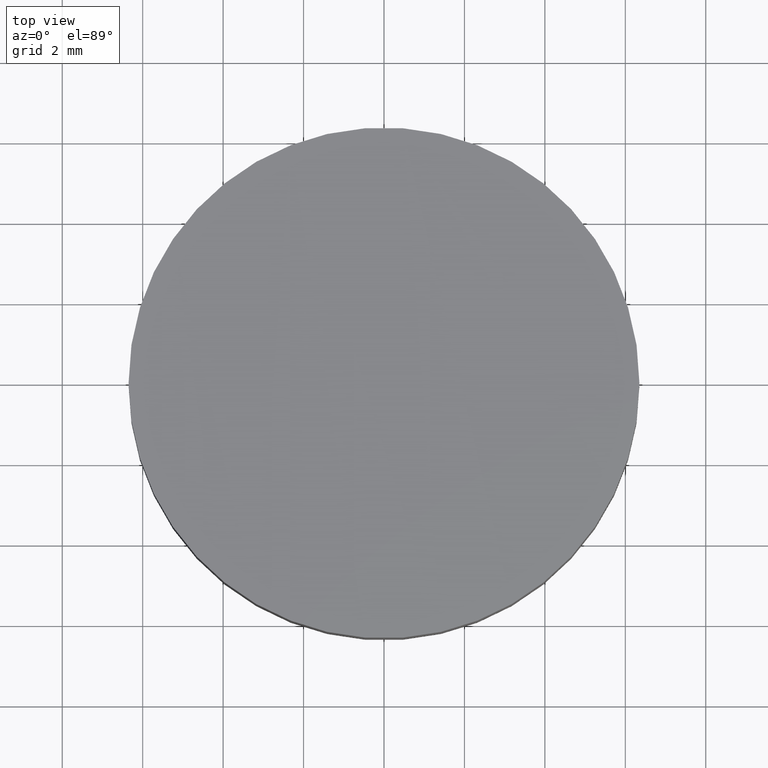
[diagram: clean part render]
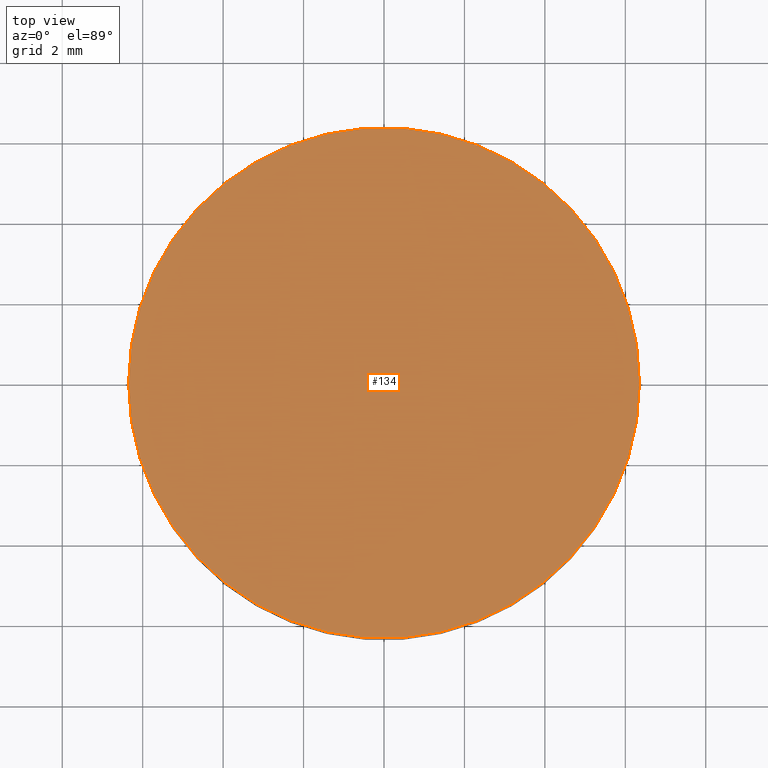
[diagram: same view with one face highlighted and labeled with its STEP entity id]
A machine part, top view. The second image highlights one B-rep face of the part: STEP entity #134.
In plain terms, the highlighted planar face has unit normal (0, 0, 1).
Its self-contained STEP definition (entity closure, byte-faithful):
#3 = EDGE_CURVE ( 'NONE', #124, #110, #46, .T. ) ;
#4 = FACE_OUTER_BOUND ( 'NONE', #93, .T. ) ;
#8 = CARTESIAN_POINT ( 'NONE',  ( 6.349999999999999600, 7.776507174585692200E-016, 3.000000000000000000 ) ) ;
#11 = DIRECTION ( 'NONE',  ( 0.0000000000000000000, 0.0000000000000000000, 1.000000000000000000 ) ) ;
#22 = DIRECTION ( 'NONE',  ( 1.000000000000000000, 0.0000000000000000000, 0.0000000000000000000 ) ) ;
#23 = EDGE_CURVE ( 'NONE', #110, #124, #82, .T. ) ;
#28 = DIRECTION ( 'NONE',  ( 1.000000000000000000, 0.0000000000000000000, -0.0000000000000000000 ) ) ;
#30 = CARTESIAN_POINT ( 'NONE',  ( -6.349999999999999600, 0.0000000000000000000, 3.000000000000000000 ) ) ;
#41 = CARTESIAN_POINT ( 'NONE',  ( 0.0000000000000000000, 0.0000000000000000000, 3.000000000000000000 ) ) ;
#46 = CIRCLE ( 'NONE', #69, 6.349999999999999600 ) ;
#65 = CARTESIAN_POINT ( 'NONE',  ( 0.0000000000000000000, 0.0000000000000000000, 3.000000000000000000 ) ) ;
#68 = DIRECTION ( 'NONE',  ( 1.000000000000000000, 0.0000000000000000000, 0.0000000000000000000 ) ) ;
#69 = AXIS2_PLACEMENT_3D ( 'NONE', #41, #11, #22 ) ;
#78 = CARTESIAN_POINT ( 'NONE',  ( 0.0000000000000000000, 0.0000000000000000000, 3.000000000000000000 ) ) ;
#82 = CIRCLE ( 'NONE', #91, 6.349999999999999600 ) ;
#88 = PLANE ( 'NONE',  #139 ) ;
#91 = AXIS2_PLACEMENT_3D ( 'NONE', #78, #140, #68 ) ;
#93 = EDGE_LOOP ( 'NONE', ( #99, #104 ) ) ;
#99 = ORIENTED_EDGE ( 'NONE', *, *, #23, .T. ) ;
#104 = ORIENTED_EDGE ( 'NONE', *, *, #3, .T. ) ;
#106 = DIRECTION ( 'NONE',  ( 0.0000000000000000000, 0.0000000000000000000, 1.000000000000000000 ) ) ;
#110 = VERTEX_POINT ( 'NONE', #30 ) ;
#124 = VERTEX_POINT ( 'NONE', #8 ) ;
#134 = ADVANCED_FACE ( 'NONE', ( #4 ), #88, .T. ) ;
#139 = AXIS2_PLACEMENT_3D ( 'NONE', #65, #106, #28 ) ;
#140 = DIRECTION ( 'NONE',  ( 0.0000000000000000000, 0.0000000000000000000, 1.000000000000000000 ) ) ;